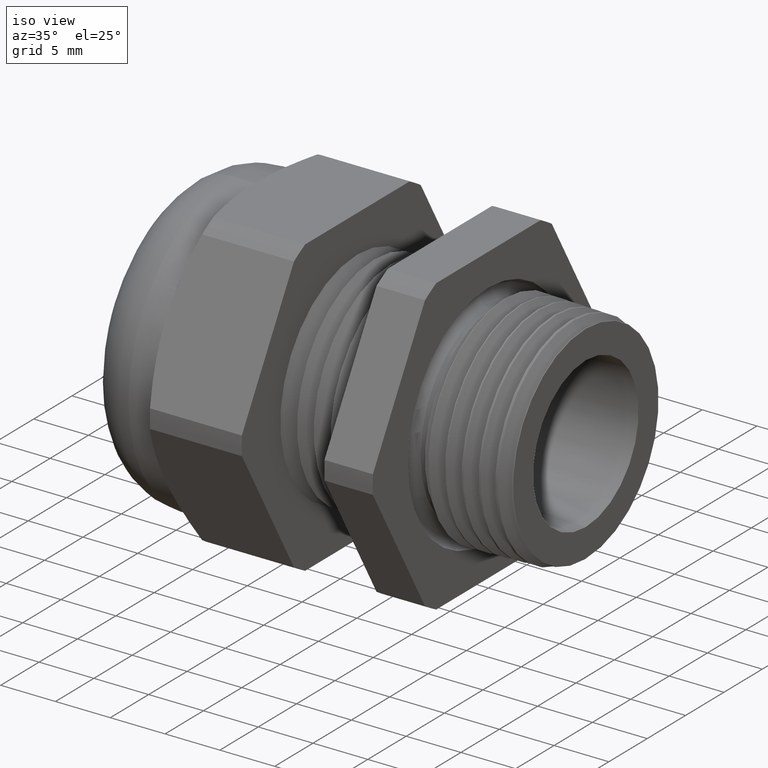
[diagram: clean part render]
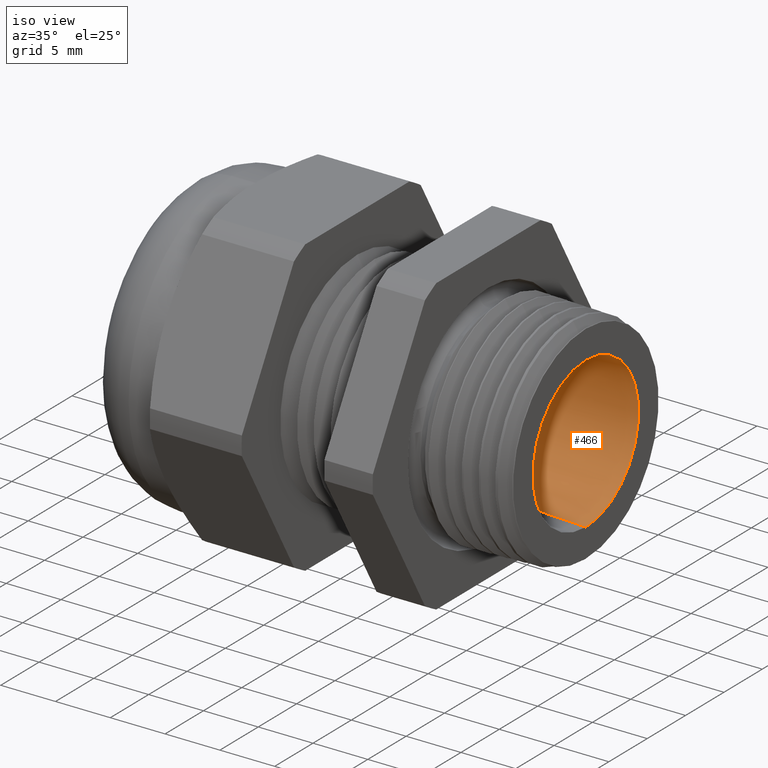
[diagram: same view with one face highlighted and labeled with its STEP entity id]
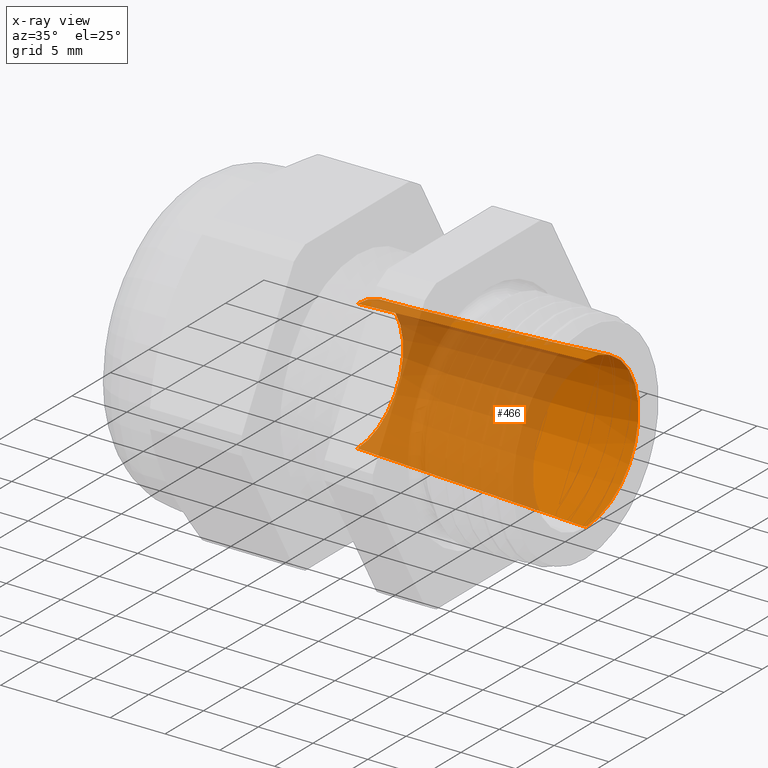
[diagram: x-ray of the same camera — body ghosted, the highlighted face saturated]
A machine part, iso view. The second image highlights one B-rep face of the part: STEP entity #466.
The next image is the same camera in x-ray: the body ghosted, the highlighted face saturated — about 64% of this face is hidden behind the body in this view.
In plain terms, the highlighted conical surface has half-angle 2.5 deg.
Its self-contained STEP definition (entity closure, byte-faithful):
#466 = ADVANCED_FACE ( 'NONE', ( #1771 ), #1770, .F. ) ;
#836 = VERTEX_POINT ( 'NONE', #2476 ) ;
#839 = VERTEX_POINT ( 'NONE', #2464 ) ;
#847 = EDGE_CURVE ( 'NONE', #839, #854, #2452, .T. ) ;
#849 = VERTEX_POINT ( 'NONE', #2514 ) ;
#851 = EDGE_CURVE ( 'NONE', #836, #849, #2508, .T. ) ;
#854 = VERTEX_POINT ( 'NONE', #2504 ) ;
#990 = EDGE_CURVE ( 'NONE', #836, #839, #2597, .T. ) ;
#1165 = ORIENTED_EDGE ( 'NONE', *, *, #851, .F. ) ;
#1166 = ORIENTED_EDGE ( 'NONE', *, *, #847, .T. ) ;
#1168 = ORIENTED_EDGE ( 'NONE', *, *, #3134, .F. ) ;
#1170 = EDGE_LOOP ( 'NONE', ( #1165, #1171, #1166, #1168 ) ) ;
#1171 = ORIENTED_EDGE ( 'NONE', *, *, #990, .T. ) ;
#1182 = VECTOR ( 'NONE', #1188, 39.37007874015748100 ) ;
#1188 = DIRECTION ( 'NONE',  ( 0.9990482215818576900, 0.0000000000000000000, -0.04361938736533620800 ) ) ;
#1765 = DIRECTION ( 'NONE',  ( 0.0000000000000000000, 0.0000000000000000000, -1.000000000000000000 ) ) ;
#1766 = DIRECTION ( 'NONE',  ( 1.000000000000000000, 0.0000000000000000000, 0.0000000000000000000 ) ) ;
#1767 = CARTESIAN_POINT ( 'NONE',  ( -0.4708333333333334900, 0.0000000000000000000, 0.0000000000000000000 ) ) ;
#1768 = AXIS2_PLACEMENT_3D ( 'NONE', #1767, #1766, #1765 ) ;
#1770 = CONICAL_SURFACE ( 'NONE', #1768, 0.2349999999999999900, 0.04363323129985844500 ) ;
#1771 = FACE_OUTER_BOUND ( 'NONE', #1170, .T. ) ;
#2451 = CARTESIAN_POINT ( 'NONE',  ( -0.4708333333333334900, 0.0000000000000000000, -0.2349999999999999900 ) ) ;
#2452 = LINE ( 'NONE', #2451, #1182 ) ;
#2464 = CARTESIAN_POINT ( 'NONE',  ( -0.4708333333333334900, 2.877919977996279800E-017, -0.2349999999999999900 ) ) ;
#2476 = CARTESIAN_POINT ( 'NONE',  ( -0.4708333333333334900, 0.0000000000000000000, 0.2349999999999999900 ) ) ;
#2504 = CARTESIAN_POINT ( 'NONE',  ( 0.3499999999999999800, 0.0000000000000000000, -0.2708383573040704700 ) ) ;
#2505 = DIRECTION ( 'NONE',  ( 0.9990482215818576900, 5.341834311772748700E-018, 0.04361938736533620800 ) ) ;
#2506 = VECTOR ( 'NONE', #2505, 39.37007874015748100 ) ;
#2507 = CARTESIAN_POINT ( 'NONE',  ( -0.4708333333333334900, 2.877919977996279800E-017, 0.2349999999999999900 ) ) ;
#2508 = LINE ( 'NONE', #2507, #2506 ) ;
#2514 = CARTESIAN_POINT ( 'NONE',  ( 0.3499999999999999800, 3.316813273587571100E-017, 0.2708383573040704700 ) ) ;
#2593 = DIRECTION ( 'NONE',  ( 0.0000000000000000000, 0.0000000000000000000, 1.000000000000000000 ) ) ;
#2594 = DIRECTION ( 'NONE',  ( -1.000000000000000000, 0.0000000000000000000, 0.0000000000000000000 ) ) ;
#2595 = CARTESIAN_POINT ( 'NONE',  ( -0.4708333333333334900, 0.0000000000000000000, 0.0000000000000000000 ) ) ;
#2596 = AXIS2_PLACEMENT_3D ( 'NONE', #2595, #2594, #2593 ) ;
#2597 = CIRCLE ( 'NONE', #2596, 0.2349999999999999900 ) ;
#2796 = DIRECTION ( 'NONE',  ( 0.0000000000000000000, 0.0000000000000000000, 1.000000000000000000 ) ) ;
#2797 = DIRECTION ( 'NONE',  ( -1.000000000000000000, 0.0000000000000000000, 0.0000000000000000000 ) ) ;
#2798 = CARTESIAN_POINT ( 'NONE',  ( 0.3499999999999999800, 0.0000000000000000000, 0.0000000000000000000 ) ) ;
#2799 = AXIS2_PLACEMENT_3D ( 'NONE', #2798, #2797, #2796 ) ;
#2800 = CIRCLE ( 'NONE', #2799, 0.2708383573040704700 ) ;
#3134 = EDGE_CURVE ( 'NONE', #849, #854, #2800, .T. ) ;